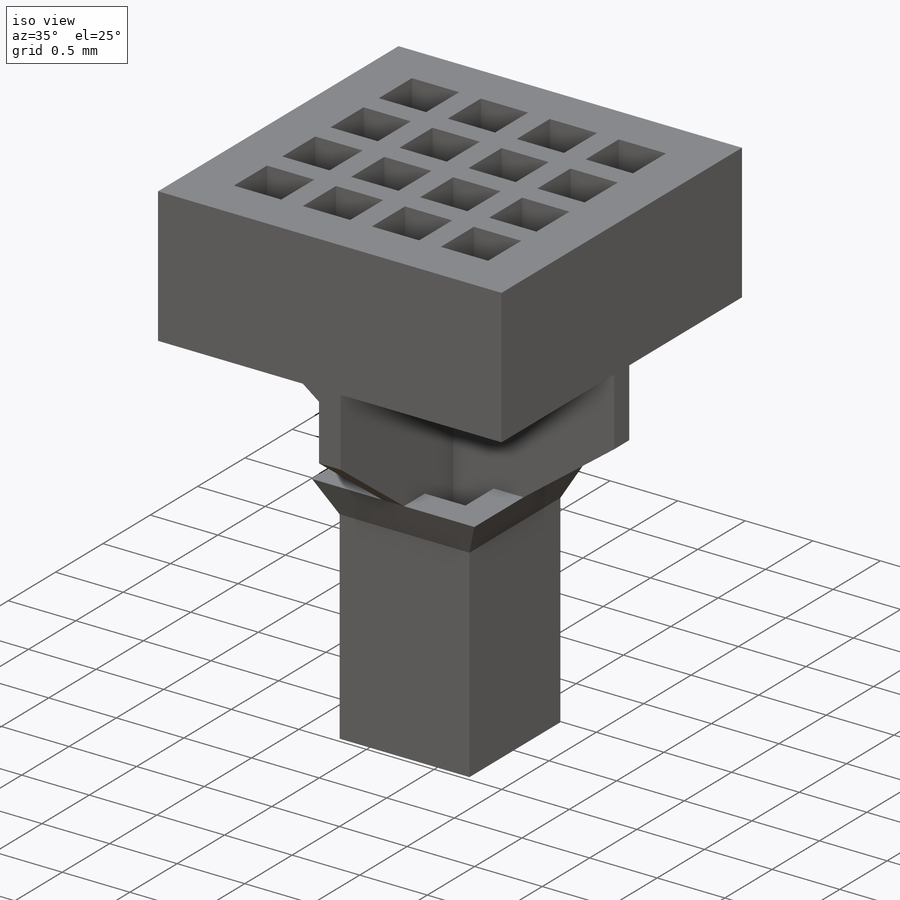
[diagram: iso view]
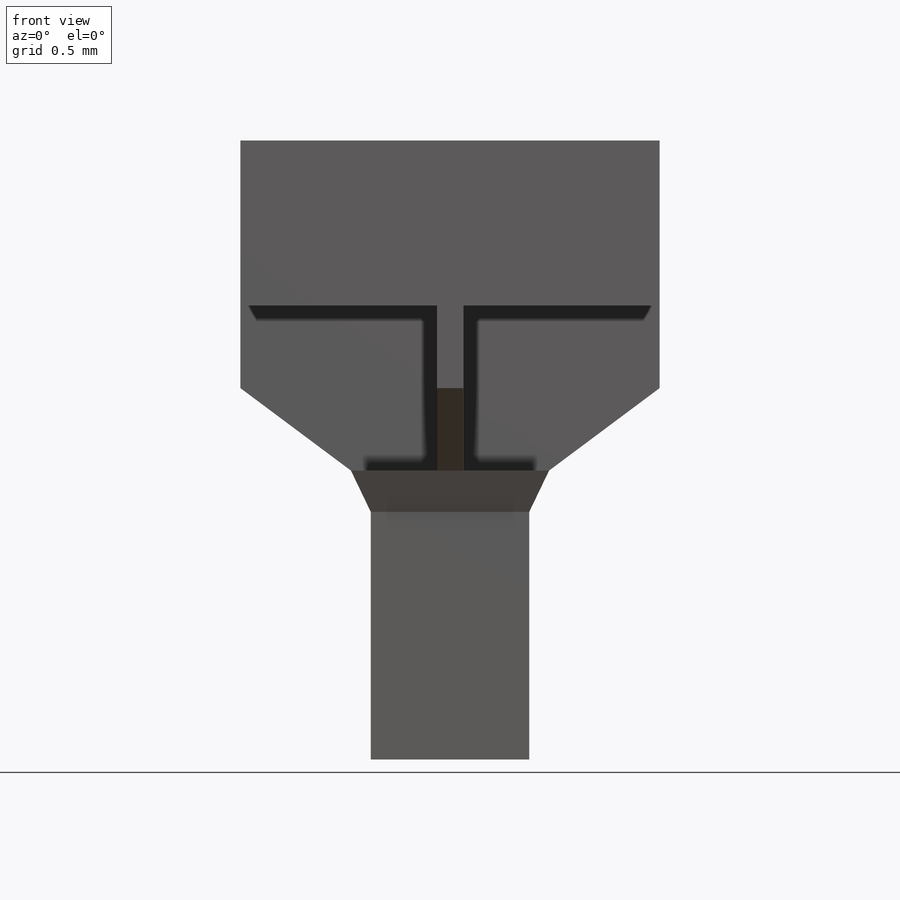
[diagram: front view]
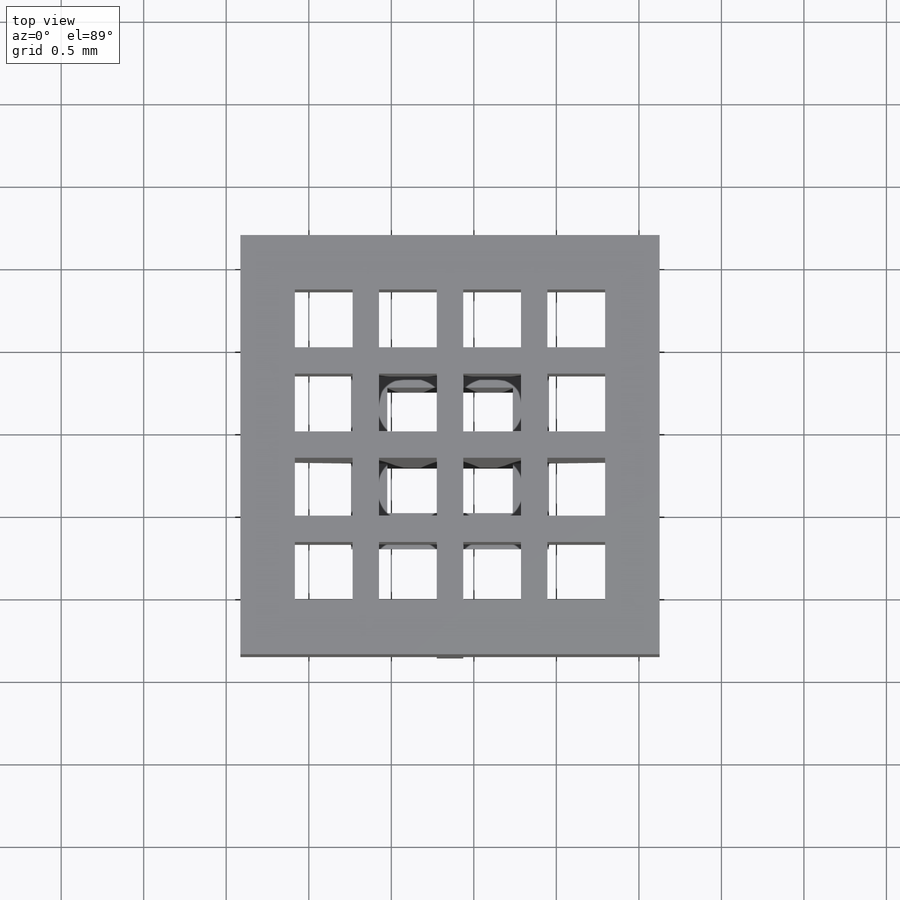
[diagram: top view]
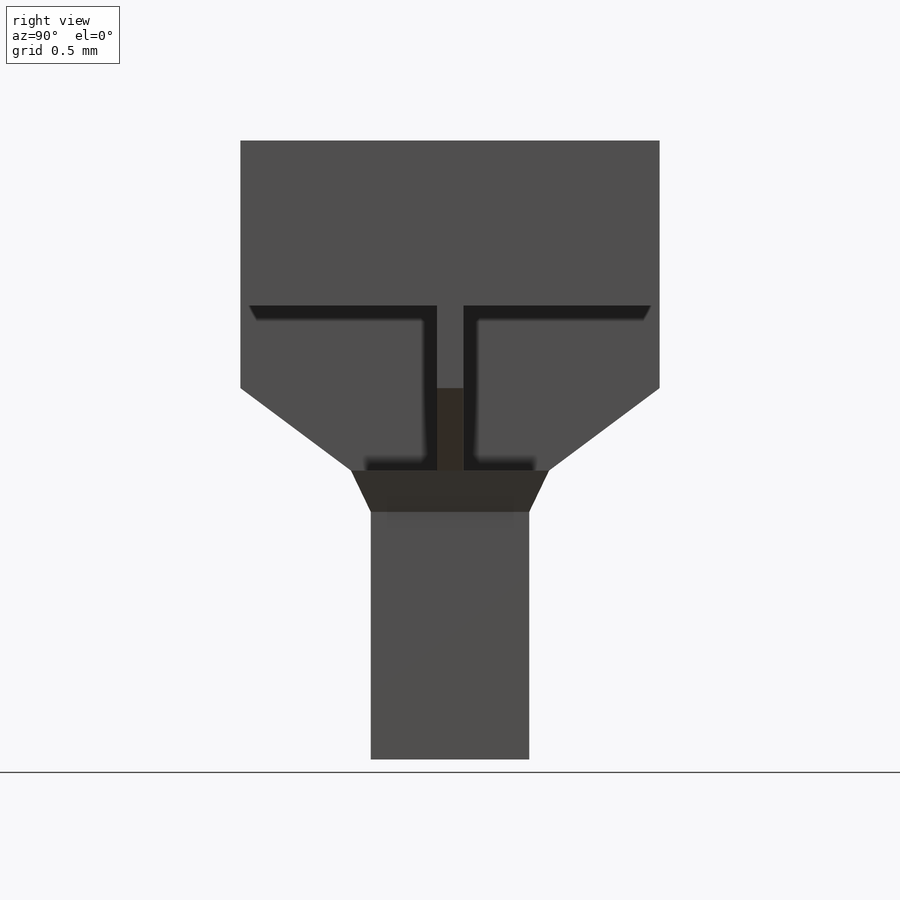
[diagram: right view]
SOLIDWORKS PART (.sldprt)
format: sldprt  version: not decoded by parser v0  size: 499,200 bytes
history: native  units: mm
features: sketch x12, extrude x4, cut_extrude x2, plane x2, material x1 (+12 scaffold rows collapsed)
feature tree (33):
  scaffold x12  (default folders/planes/origin — collapsed)
  material  "Material <not specified>"
  sketch  "top_panel"  dims[D1=2.54mm D2=2.54mm]
  extrude  "Boss-Extrude1"  Depth=1mm
  sketch  "well_holes"  dims[D1=0.35mm D2=0.35mm D5=0.33mm D6=0.33mm D3=4.0 D4=4.0]
  cut_extrude  "wells"  Depth=1mm
  sketch  "support_wall_sketch"  dims[D1=0.16mm]
  plane  "Plane1"  Offset=2mm
  sketch  "Sketch4"  dims[D1=0.17mm D2=0.17mm D3=0.35mm]
  sketch  "Sketch5"
  sketch  "Sketch6"
  extrude  "Boss-Extrude5"  Depth=0.5mm
  extrude  "Boss-Extrude7"  Depth=0.5mm
  sketch  "Sketch7"  dims[D1=0.52mm D2=0.52mm]
  sketch  "Sketch7<3>"
  sketch  "Sketch8"  dims[D1=1.2mm D2=0.52mm D3=0.52mm D4=0.52mm D5=0.52mm]
  plane  "Plane2"  Offset=0.25mm
  sketch  "Sketch9"  dims[c1.D1=0.96mm c1.D2=0.96mm c1.D3=0.75mm c2.D3=90.0deg c3.D3=0.4mm c3.D4=0.4mm c3.D5=0.4mm]
  sketch  "tetrode_entry_holdes"  dims[D1=0.3mm D2=0.3mm D3=2.0 D4=2.0]
  extrude  "Boss-Extrude8"  [1 undecoded]
  sketch  "Sketch9<2>"  dims[D1=1.5mm]
  cut_extrude  "Cut-Extrude1"  Depth=1.75mm
decode coverage: 14 of 18 modeling features carry decoded parameters
note: 1 parameter value undecoded
note: suppression state not decoded; provenance and decode notes live in map.json
